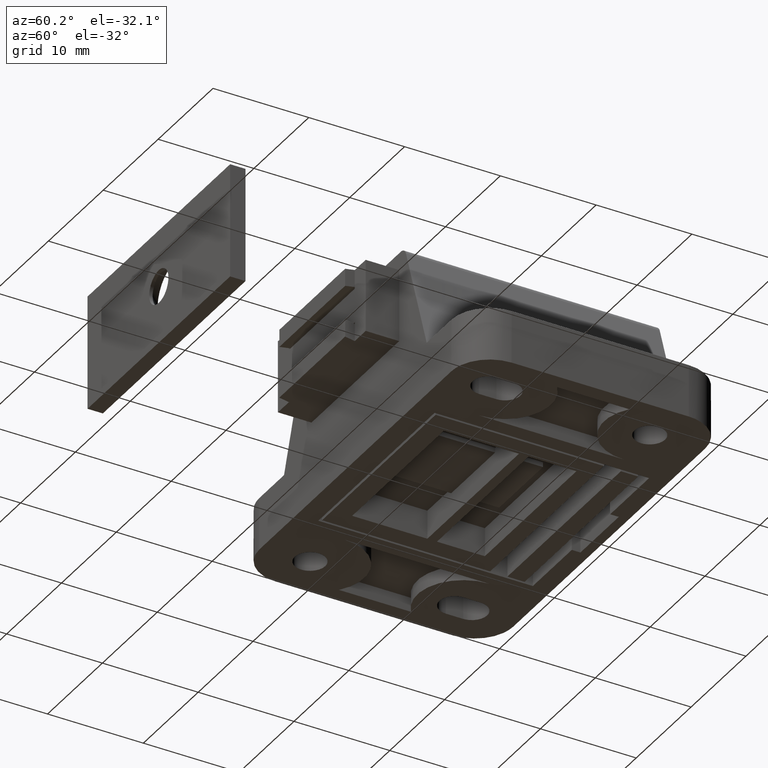
[diagram: clean part render]
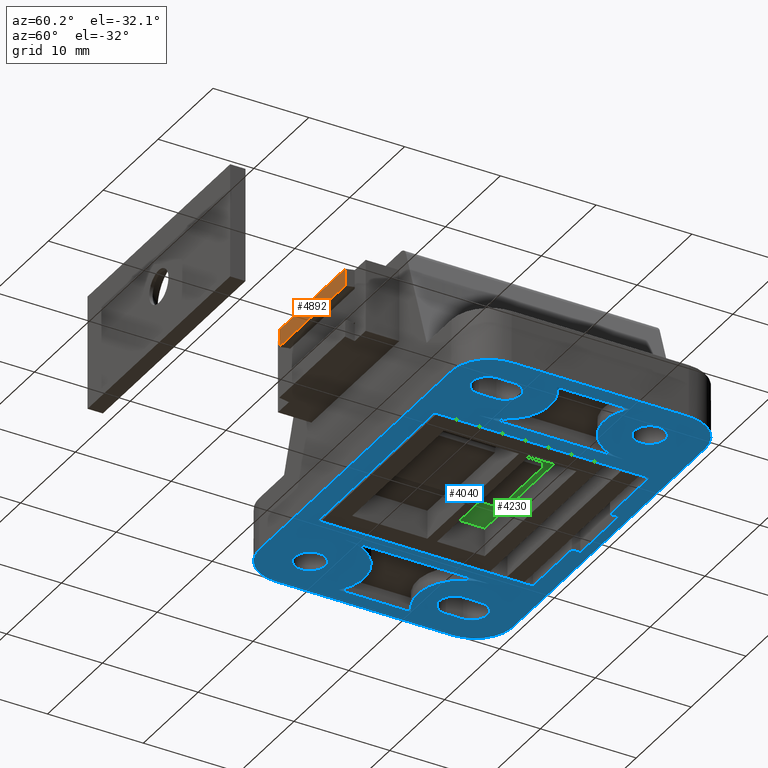
[diagram: same view with three faces highlighted in distinct colors, each labeled with its STEP entity id]
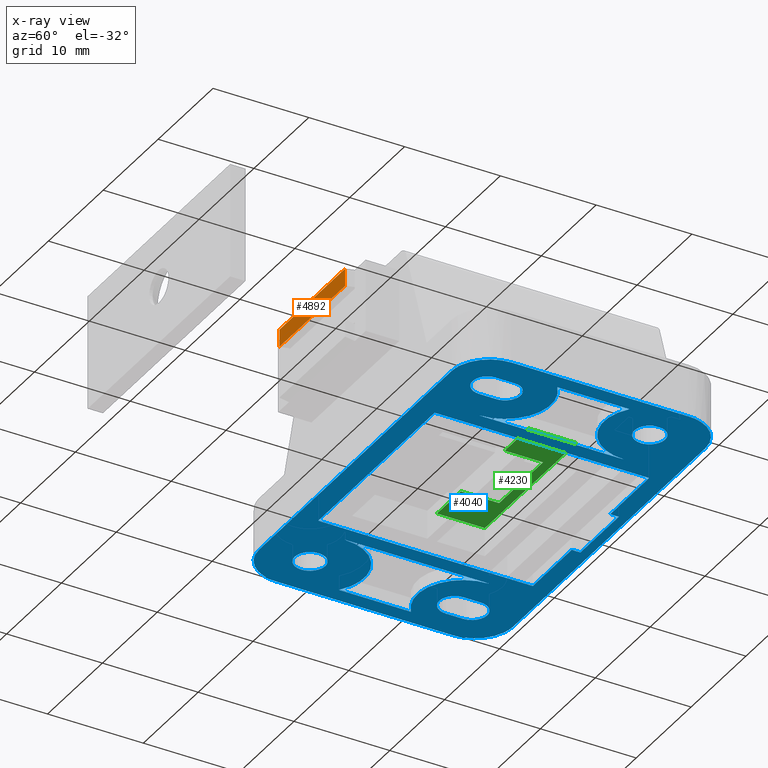
[diagram: x-ray of the same camera — body ghosted, the three highlighted faces saturated]
A machine part, auxiliary view with three faces highlighted in distinct colors.
The next image is the same camera in x-ray (body ghosted, the three faces saturated) — at least one of them is partly hidden behind the body in this view.
Their STEP definitions:

[orange] entity #4892 — the highlighted face is a freeform B-spline surface patch.
#4842=CARTESIAN_POINT('',(-6.0,-31.0,13.999982178704100));
#4843=VERTEX_POINT('',#4842);
#4850=CARTESIAN_POINT('',(6.0,-31.0,13.999982178704100));
#4851=VERTEX_POINT('',#4850);
#4857=CARTESIAN_POINT('',(6.0,-31.0,13.999982178704100));
#4858=CARTESIAN_POINT('',(-6.0,-31.0,13.999982178704100));
#4859=QUASI_UNIFORM_CURVE('',1,(#4857,#4858),.UNSPECIFIED.,.F.,.U.);
#4860=EDGE_CURVE('',#4851,#4843,#4859,.T.);
#4865=CARTESIAN_POINT('',(-6.599399976741673,-31.0,13.908889116487950));
#4866=CARTESIAN_POINT('',(-6.599399976741673,-31.0,15.914760289851399));
#4867=CARTESIAN_POINT('',(6.599400298606755,-31.0,13.908889116487950));
#4868=CARTESIAN_POINT('',(6.599400298606755,-31.0,15.914760289851399));
#4869=B_SPLINE_SURFACE_WITH_KNOTS('',1,1,((#4865,#4867),(#4866,#4868)),.UNSPECIFIED.,.F.,.F.,.U.,(2,2),(2,2),(0.0,2.005871173363449),(0.0,13.198800275348431),.UNSPECIFIED.);
#4870=CARTESIAN_POINT('',(-6.0,-31.0,15.823667178720200));
#4871=VERTEX_POINT('',#4870);
#4872=CARTESIAN_POINT('',(-6.0,-31.0,15.823667178720200));
#4873=CARTESIAN_POINT('',(-6.0,-31.0,13.999982178704100));
#4874=QUASI_UNIFORM_CURVE('',1,(#4872,#4873),.UNSPECIFIED.,.F.,.U.);
#4875=EDGE_CURVE('',#4871,#4843,#4874,.T.);
#4876=ORIENTED_EDGE('',*,*,#4875,.T.);
#4877=ORIENTED_EDGE('',*,*,#4860,.F.);
#4878=CARTESIAN_POINT('',(6.0,-31.0,15.823667178720200));
#4879=VERTEX_POINT('',#4878);
#4880=CARTESIAN_POINT('',(6.0,-31.0,15.823667178720200));
#4881=CARTESIAN_POINT('',(6.0,-31.0,13.999982178704100));
#4882=QUASI_UNIFORM_CURVE('',1,(#4880,#4881),.UNSPECIFIED.,.F.,.U.);
#4883=EDGE_CURVE('',#4879,#4851,#4882,.T.);
#4884=ORIENTED_EDGE('',*,*,#4883,.F.);
#4885=CARTESIAN_POINT('',(6.0,-31.0,15.823667178720200));
#4886=CARTESIAN_POINT('',(-6.0,-31.0,15.823667178720200));
#4887=QUASI_UNIFORM_CURVE('',1,(#4885,#4886),.UNSPECIFIED.,.F.,.U.);
#4888=EDGE_CURVE('',#4879,#4871,#4887,.T.);
#4889=ORIENTED_EDGE('',*,*,#4888,.T.);
#4890=EDGE_LOOP('',(#4876,#4877,#4884,#4889));
#4891=FACE_OUTER_BOUND('',#4890,.T.);
#4892=ADVANCED_FACE('',(#4891),#4869,.F.);

[blue] entity #4040 — the highlighted face is a freeform B-spline surface patch.
#1383=CARTESIAN_POINT('',(15.919059576382010,-4.320356108366761,8.326673E-017));
#1384=VERTEX_POINT('',#1383);
#1390=CARTESIAN_POINT('',(17.000003299812128,-3.900000000000264,0.0));
#1391=VERTEX_POINT('',#1390);
#1392=CARTESIAN_POINT('',(17.000003299812128,-3.900000000000264,0.0));
#1393=CARTESIAN_POINT('',(16.839278033147750,-3.899923436965544,1.238091E-017));
#1394=CARTESIAN_POINT('',(16.616794961024649,-3.933817106661194,2.951911E-017));
#1395=CARTESIAN_POINT('',(16.245816619025572,-4.073159576755494,5.809613E-017));
#1396=CARTESIAN_POINT('',(16.046604441163950,-4.203331620708187,7.344175E-017));
#1397=CARTESIAN_POINT('',(15.919059576382010,-4.320356108366761,8.326673E-017));
#1398=B_SPLINE_CURVE_WITH_KNOTS('',3,(#1392,#1393,#1394,#1395,#1396,#1397),.UNSPECIFIED.,.F.,.U.,(4,1,1,4),(0.000029902637246,0.482172894701399,0.667613995927958,1.186844805128582),.UNSPECIFIED.);
#1399=EDGE_CURVE('',#1391,#1384,#1398,.T.);
#1401=CARTESIAN_POINT('',(18.600003999999998,-5.500000000000110,0.0));
#1402=VERTEX_POINT('',#1401);
#1403=CARTESIAN_POINT('',(18.600003999999998,-5.500000000000110,0.0));
#1404=CARTESIAN_POINT('',(18.600043918464841,-5.362552990699267,0.0));
#1405=CARTESIAN_POINT('',(18.570290413108900,-5.133503226270417,0.0));
#1406=CARTESIAN_POINT('',(18.441969106481292,-4.774730882041303,0.0));
#1407=CARTESIAN_POINT('',(18.242009954981480,-4.463214071742804,0.0));
#1408=CARTESIAN_POINT('',(17.950662860433219,-4.195919740484785,0.0));
#1409=CARTESIAN_POINT('',(17.646997900039811,-4.023899129124258,0.0));
#1410=CARTESIAN_POINT('',(17.327243611777870,-3.922619395175811,0.0));
#1411=CARTESIAN_POINT('',(17.111266119982560,-3.899985257321630,0.0));
#1412=CARTESIAN_POINT('',(17.000003299812128,-3.900000000000264,0.0));
#1413=B_SPLINE_CURVE_WITH_KNOTS('',3,(#1403,#1404,#1405,#1406,#1407,#1408,#1409,#1410,#1411,#1412),.UNSPECIFIED.,.F.,.U.,(4,1,1,1,1,1,1,4),(0.000000059796598,0.412332460007275,0.687228764142328,1.138849418433117,1.511893794400894,1.865332492258203,2.179502804075492,2.513290287245679),.UNSPECIFIED.);
#1414=EDGE_CURVE('',#1402,#1391,#1413,.T.);
#1416=CARTESIAN_POINT('',(18.080948423617990,-6.679643891633461,-1.249001E-016));
#1417=VERTEX_POINT('',#1416);
#1418=CARTESIAN_POINT('',(18.080948423617990,-6.679643891633461,-1.249001E-016));
#1419=CARTESIAN_POINT('',(18.177731986192700,-6.590975435305674,-1.155119E-016));
#1420=CARTESIAN_POINT('',(18.371974345561348,-6.363205453618451,-9.139575E-017));
#1421=CARTESIAN_POINT('',(18.557473575112510,-5.955967587715835,-4.827761E-017));
#1422=CARTESIAN_POINT('',(18.600039863604000,-5.645081027245093,-1.536110E-017));
#1423=CARTESIAN_POINT('',(18.600003999999998,-5.500000000000110,0.0));
#1424=B_SPLINE_CURVE_WITH_KNOTS('',3,(#1418,#1419,#1420,#1421,#1422,#1423),.UNSPECIFIED.,.F.,.U.,(4,1,1,4),(0.000000018814707,0.393794391122592,0.891213019356780,1.326459612874815),.UNSPECIFIED.);
#1425=EDGE_CURVE('',#1417,#1402,#1424,.T.);
#1459=CARTESIAN_POINT('',(17.000004700187880,-7.099999999999956,0.0));
#1460=VERTEX_POINT('',#1459);
#1461=CARTESIAN_POINT('',(17.000004700187880,-7.099999999999956,0.0));
#1462=CARTESIAN_POINT('',(17.111268472385731,-7.100014348539089,-1.285622E-017));
#1463=CARTESIAN_POINT('',(17.346159885214149,-7.075407456273957,-3.999728E-017));
#1464=CARTESIAN_POINT('',(17.723649010535070,-6.948445782808120,-8.361511E-017));
#1465=CARTESIAN_POINT('',(17.962500935797511,-6.788276912701074,-1.112138E-016));
#1466=CARTESIAN_POINT('',(18.080948423617990,-6.679643891633461,-1.249001E-016));
#1467=B_SPLINE_CURVE_WITH_KNOTS('',3,(#1461,#1462,#1463,#1464,#1465,#1466),.UNSPECIFIED.,.F.,.U.,(4,1,1,4),(0.000029902637423,0.333821452377519,0.704701813049905,1.186844805128569),.UNSPECIFIED.);
#1468=EDGE_CURVE('',#1460,#1417,#1467,.T.);
#1470=CARTESIAN_POINT('',(15.400003999999999,-5.500000000000110,0.0));
#1471=VERTEX_POINT('',#1470);
#1472=CARTESIAN_POINT('',(15.400003999999999,-5.500000000000110,0.0));
#1473=CARTESIAN_POINT('',(15.399982870362271,-5.624354466942160,0.0));
#1474=CARTESIAN_POINT('',(15.429141513583570,-5.873052815241662,0.0));
#1475=CARTESIAN_POINT('',(15.571340501872960,-6.263106614950690,0.0));
#1476=CARTESIAN_POINT('',(15.809806374713840,-6.597323852597921,0.0));
#1477=CARTESIAN_POINT('',(16.120368826417810,-6.852106536443438,0.0));
#1478=CARTESIAN_POINT('',(16.502677646426658,-7.044578682780013,0.0));
#1479=CARTESIAN_POINT('',(16.810174647185139,-7.100161435045648,0.0));
#1480=CARTESIAN_POINT('',(17.000004700187880,-7.099999999999956,0.0));
#1481=B_SPLINE_CURVE_WITH_KNOTS('',3,(#1472,#1473,#1474,#1475,#1476,#1477,#1478,#1479,#1480),.UNSPECIFIED.,.F.,.U.,(4,1,1,1,1,1,4),(0.000000059793927,0.373062237881314,0.746137085545919,1.237027849721945,1.590432666047061,1.943873932416668,2.513290287245692),.UNSPECIFIED.);
#1482=EDGE_CURVE('',#1471,#1460,#1481,.T.);
#1484=CARTESIAN_POINT('',(15.919059576382010,-4.320356108366761,8.326673E-017));
#1485=CARTESIAN_POINT('',(15.791634415247390,-4.436972101833264,7.503523E-017));
#1486=CARTESIAN_POINT('',(15.627225180011139,-4.646022937721922,6.027910E-017));
#1487=CARTESIAN_POINT('',(15.445891604933159,-5.051015080520730,3.169220E-017));
#1488=CARTESIAN_POINT('',(15.399866730492761,-5.320351141157878,1.268075E-017));
#1489=CARTESIAN_POINT('',(15.400003999999999,-5.500000000000110,0.0));
#1490=B_SPLINE_CURVE_WITH_KNOTS('',3,(#1484,#1485,#1486,#1487,#1488,#1489),.UNSPECIFIED.,.F.,.U.,(4,1,1,4),(0.000000018813523,0.518149565954184,0.787578948524305,1.326459612874832),.UNSPECIFIED.);
#1491=EDGE_CURVE('',#1384,#1471,#1490,.T.);
#1516=CARTESIAN_POINT('',(-18.080944423617989,-20.320356108366649,8.326673E-017));
#1517=VERTEX_POINT('',#1516);
#1523=CARTESIAN_POINT('',(-17.000000700187869,-19.900000000000151,0.0));
#1524=VERTEX_POINT('',#1523);
#1525=CARTESIAN_POINT('',(-17.000000700187869,-19.900000000000151,0.0));
#1526=CARTESIAN_POINT('',(-17.160725044255440,-19.899923049500799,1.238084E-017));
#1527=CARTESIAN_POINT('',(-17.383210828633469,-19.933817927395680,2.951925E-017));
#1528=CARTESIAN_POINT('',(-17.754185616950760,-20.073158901945320,5.809600E-017));
#1529=CARTESIAN_POINT('',(-17.953400455220290,-20.203332009916220,7.344182E-017));
#1530=CARTESIAN_POINT('',(-18.080944423617989,-20.320356108366649,8.326673E-017));
#1531=B_SPLINE_CURVE_WITH_KNOTS('',3,(#1525,#1526,#1527,#1528,#1529,#1530),.UNSPECIFIED.,.F.,.U.,(4,1,1,4),(0.000029902635757,0.482172894700609,0.667613995927347,1.186844805128582),.UNSPECIFIED.);
#1532=EDGE_CURVE('',#1524,#1517,#1531,.T.);
#1534=CARTESIAN_POINT('',(-15.400000000000000,-21.500000000000000,0.0));
#1535=VERTEX_POINT('',#1534);
#1536=CARTESIAN_POINT('',(-15.400000000000000,-21.500000000000000,0.0));
#1537=CARTESIAN_POINT('',(-15.399991968787530,-21.401825734448611,0.0));
#1538=CARTESIAN_POINT('',(-15.419338127092180,-21.192392360006291,0.0));
#1539=CARTESIAN_POINT('',(-15.525942371364490,-20.832742820343469,0.0));
#1540=CARTESIAN_POINT('',(-15.739182311094471,-20.481894492678350,0.0));
#1541=CARTESIAN_POINT('',(-16.043604425217499,-20.199158182016571,0.0));
#1542=CARTESIAN_POINT('',(-16.324359530756499,-20.040139833957539,0.0));
#1543=CARTESIAN_POINT('',(-16.640053427315340,-19.929366700325019,0.0));
#1544=CARTESIAN_POINT('',(-16.856004108531490,-19.899948890867361,0.0));
#1545=CARTESIAN_POINT('',(-17.000000700187869,-19.900000000000151,0.0));
#1546=B_SPLINE_CURVE_WITH_KNOTS('',3,(#1536,#1537,#1538,#1539,#1540,#1541,#1542,#1543,#1544,#1545),.UNSPECIFIED.,.F.,.U.,(4,1,1,1,1,1,1,4),(0.000000059801591,0.294524324204230,0.628323121827682,1.119202642757225,1.511893794401964,1.865332492259115,2.081320686443302,2.513290287245651),.UNSPECIFIED.);
#1547=EDGE_CURVE('',#1535,#1524,#1546,.T.);
#1549=CARTESIAN_POINT('',(-15.919055576382011,-22.679643891633351,8.326673E-017));
#1550=VERTEX_POINT('',#1549);
#1551=CARTESIAN_POINT('',(-15.919055576382011,-22.679643891633351,8.326673E-017));
#1552=CARTESIAN_POINT('',(-15.812052686179960,-22.581660621653160,7.635045E-017));
#1553=CARTESIAN_POINT('',(-15.665122343893060,-22.404597886024710,6.385224E-017));
#1554=CARTESIAN_POINT('',(-15.518139651968200,-22.121747864170331,4.388690E-017));
#1555=CARTESIAN_POINT('',(-15.425101659090981,-21.838513414604911,2.389442E-017));
#1556=CARTESIAN_POINT('',(-15.399971607397740,-21.624357734017920,8.777955E-018));
#1557=CARTESIAN_POINT('',(-15.400000000000000,-21.500000000000000,0.0));
#1558=B_SPLINE_CURVE_WITH_KNOTS('',3,(#1551,#1552,#1553,#1554,#1555,#1556,#1557),.UNSPECIFIED.,.F.,.U.,(4,1,1,1,4),(0.000000018812638,0.435246612348211,0.683945652423920,0.953392124298708,1.326459612874826),.UNSPECIFIED.);
#1559=EDGE_CURVE('',#1550,#1535,#1558,.T.);
#1593=CARTESIAN_POINT('',(-16.999999299812121,-23.099999999999849,0.0));
#1594=VERTEX_POINT('',#1593);
#1595=CARTESIAN_POINT('',(-16.999999299812121,-23.099999999999849,0.0));
#1596=CARTESIAN_POINT('',(-16.864007519871681,-23.100037802254441,1.047565E-017));
#1597=CARTESIAN_POINT('',(-16.641496316695740,-23.071446696546019,2.761602E-017));
#1598=CARTESIAN_POINT('',(-16.266785693776260,-22.940550727929139,5.648055E-017));
#1599=CARTESIAN_POINT('',(-16.046598606585640,-22.796666055902271,7.344189E-017));
#1600=CARTESIAN_POINT('',(-15.919055576382011,-22.679643891633351,8.326673E-017));
#1601=B_SPLINE_CURVE_WITH_KNOTS('',3,(#1595,#1596,#1597,#1598,#1599,#1600),.UNSPECIFIED.,.F.,.U.,(4,1,1,4),(0.000029902636299,0.407997168622959,0.667613995927721,1.186844805128566),.UNSPECIFIED.);
#1602=EDGE_CURVE('',#1594,#1550,#1601,.T.);
#1604=CARTESIAN_POINT('',(-18.600000000000001,-21.500000000000000,0.0));
#1605=VERTEX_POINT('',#1604);
#1606=CARTESIAN_POINT('',(-18.600000000000001,-21.500000000000000,0.0));
#1607=CARTESIAN_POINT('',(-18.600021991081618,-21.624354071965069,0.0));
#1608=CARTESIAN_POINT('',(-18.573162925726479,-21.853420867767390,0.0));
#1609=CARTESIAN_POINT('',(-18.474738160925838,-22.139483543843149,0.0));
#1610=CARTESIAN_POINT('',(-18.330870226989049,-22.404736002520728,0.0));
#1611=CARTESIAN_POINT('',(-18.119292771574099,-22.665840177710859,0.0));
#1612=CARTESIAN_POINT('',(-17.839631651180561,-22.875907819697471,0.0));
#1613=CARTESIAN_POINT('',(-17.464599172335809,-23.050487525952470,0.0));
#1614=CARTESIAN_POINT('',(-17.189831944607018,-23.100149345721821,0.0));
#1615=CARTESIAN_POINT('',(-16.999999299812121,-23.099999999999849,0.0));
#1616=B_SPLINE_CURVE_WITH_KNOTS('',3,(#1606,#1607,#1608,#1609,#1610,#1611,#1612,#1613,#1614,#1615),.UNSPECIFIED.,.F.,.U.,(4,1,1,1,1,1,1,4),(0.000000059790709,0.373062237878924,0.687228764138522,0.903215895794845,1.276261969619775,1.688614783701221,1.943873932416338,2.513290287245694),.UNSPECIFIED.);
#1617=EDGE_CURVE('',#1605,#1594,#1616,.T.);
#1619=CARTESIAN_POINT('',(-18.080944423617989,-20.320356108366649,8.326673E-017));
#1620=CARTESIAN_POINT('',(-18.172646136686009,-20.404352411328720,7.733774E-017));
#1621=CARTESIAN_POINT('',(-18.336304584375931,-20.593868060611150,6.396052E-017));
#1622=CARTESIAN_POINT('',(-18.541622006064859,-20.988862996044020,3.607928E-017));
#1623=CARTESIAN_POINT('',(-18.600174206566269,-21.306530050609570,1.365633E-017));
#1624=CARTESIAN_POINT('',(-18.600000000000001,-21.500000000000000,0.0));
#1625=B_SPLINE_CURVE_WITH_KNOTS('',3,(#1619,#1620,#1621,#1622,#1623,#1624),.UNSPECIFIED.,.F.,.U.,(4,1,1,4),(0.000000018813927,0.373067507395356,0.746127337586802,1.326459612874841),.UNSPECIFIED.);
#1626=EDGE_CURVE('',#1517,#1605,#1625,.T.);
#1664=CARTESIAN_POINT('',(17.500004000000001,-26.500000000000000,0.0));
#1665=VERTEX_POINT('',#1664);
#1671=CARTESIAN_POINT('',(21.500004000000001,-22.500000000000000,0.0));
#1672=VERTEX_POINT('',#1671);
#1673=CARTESIAN_POINT('',(21.500004000000001,-22.500000000000000,0.0));
#1674=CARTESIAN_POINT('',(21.500088939378038,-22.827256214470310,0.0));
#1675=CARTESIAN_POINT('',(21.431328082190880,-23.383535719117639,0.0));
#1676=CARTESIAN_POINT('',(21.148196805316740,-24.206628916428532,0.0));
#1677=CARTESIAN_POINT('',(20.737483739106619,-24.901549265306350,0.0));
#1678=CARTESIAN_POINT('',(20.245067946775830,-25.431524844746608,0.0));
#1679=CARTESIAN_POINT('',(19.743651181604619,-25.827808094386729,0.0));
#1680=CARTESIAN_POINT('',(19.247035441880900,-26.117239364629029,0.0));
#1681=CARTESIAN_POINT('',(18.481663421859029,-26.412532940329090,0.0));
#1682=CARTESIAN_POINT('',(17.892726749522659,-26.500174128748270,0.0));
#1683=CARTESIAN_POINT('',(17.500004000000001,-26.500000000000000,0.0));
#1684=B_SPLINE_CURVE_WITH_KNOTS('',3,(#1673,#1674,#1675,#1676,#1677,#1678,#1679,#1680,#1681,#1682,#1683),.UNSPECIFIED.,.F.,.U.,(4,1,1,1,1,1,1,1,4),(0.000000032443184,0.981750947288642,1.668982886460930,2.601661185809858,3.387036298014846,3.828837537311095,4.516065299020196,5.105124809596146,6.283224731501205),.UNSPECIFIED.);
#1685=EDGE_CURVE('',#1672,#1665,#1684,.T.);
#1727=CARTESIAN_POINT('',(21.500004000000001,-4.0,0.0));
#1728=VERTEX_POINT('',#1727);
#1734=CARTESIAN_POINT('',(17.500004000000001,0.0,0.0));
#1735=VERTEX_POINT('',#1734);
#1736=CARTESIAN_POINT('',(17.500004000000001,0.0,0.0));
#1737=CARTESIAN_POINT('',(17.892726355740631,0.000188681128478,0.0));
#1738=CARTESIAN_POINT('',(18.547107890110560,-0.097212903303109,0.0));
#1739=CARTESIAN_POINT('',(19.412947330010109,-0.455851711074045,0.0));
#1740=CARTESIAN_POINT('',(20.025956785448251,-0.870933345578662,0.0));
#1741=CARTESIAN_POINT('',(20.472161855459230,-1.306369766064500,0.0));
#1742=CARTESIAN_POINT('',(20.827812215164599,-1.756351975131964,0.0));
#1743=CARTESIAN_POINT('',(21.117244254583930,-2.252967800955791,0.0));
#1744=CARTESIAN_POINT('',(21.412536481564750,-3.018340980859986,0.0));
#1745=CARTESIAN_POINT('',(21.500178266938931,-3.607277113232672,0.0));
#1746=CARTESIAN_POINT('',(21.500004000000001,-4.0,0.0));
#1747=B_SPLINE_CURVE_WITH_KNOTS('',3,(#1736,#1737,#1738,#1739,#1740,#1741,#1742,#1743,#1744,#1745,#1746),.UNSPECIFIED.,.F.,.U.,(4,1,1,1,1,1,1,1,4),(0.000000032447061,1.178100774596782,1.963512797422508,2.798000322504592,3.387036298014542,3.828837537310797,4.516065299020096,5.105124809596042,6.283224731501202),.UNSPECIFIED.);
#1748=EDGE_CURVE('',#1735,#1728,#1747,.T.);
#1790=CARTESIAN_POINT('',(-17.500000000000000,0.0,0.0));
#1791=VERTEX_POINT('',#1790);
#1797=CARTESIAN_POINT('',(-21.500000000000000,-4.0,0.0));
#1798=VERTEX_POINT('',#1797);
#1799=CARTESIAN_POINT('',(-21.500000000000000,-4.0,0.0));
#1800=CARTESIAN_POINT('',(-21.500188455549679,-3.607277669973712,0.0));
#1801=CARTESIAN_POINT('',(-21.402787323192381,-2.952896122975232,0.0));
#1802=CARTESIAN_POINT('',(-21.044148157068872,-2.087056651635735,0.0));
#1803=CARTESIAN_POINT('',(-20.629066697438802,-1.474047163467966,0.0));
#1804=CARTESIAN_POINT('',(-20.193630224374289,-1.027842200243739,0.0));
#1805=CARTESIAN_POINT('',(-19.743648066003210,-0.672191756558146,0.0));
#1806=CARTESIAN_POINT('',(-19.247032181529089,-0.382759752470279,0.0));
#1807=CARTESIAN_POINT('',(-18.481659051165529,-0.087467500792998,0.0));
#1808=CARTESIAN_POINT('',(-17.892722843233180,0.000174305706280,0.0));
#1809=CARTESIAN_POINT('',(-17.500000000000000,0.0,0.0));
#1810=B_SPLINE_CURVE_WITH_KNOTS('',3,(#1799,#1800,#1801,#1802,#1803,#1804,#1805,#1806,#1807,#1808,#1809),.UNSPECIFIED.,.F.,.U.,(4,1,1,1,1,1,1,1,4),(0.000000032443401,1.178100774594877,1.963512797421194,2.798000322503930,3.387036298014064,3.828837537310431,4.516065299019843,5.105124809595866,6.283224731501208),.UNSPECIFIED.);
#1811=EDGE_CURVE('',#1798,#1791,#1810,.T.);
#1853=CARTESIAN_POINT('',(-21.500000000000000,-22.500000000000000,0.0));
#1854=VERTEX_POINT('',#1853);
#1860=CARTESIAN_POINT('',(-17.500000000000000,-26.500000000000000,0.0));
#1861=VERTEX_POINT('',#1860);
#1862=CARTESIAN_POINT('',(-17.500000000000000,-26.500000000000000,0.0));
#1863=CARTESIAN_POINT('',(-17.876354597767559,-26.500140633373132,0.0));
#1864=CARTESIAN_POINT('',(-18.465306141223721,-26.416224679292831,0.0));
#1865=CARTESIAN_POINT('',(-19.278912177642820,-26.108091624416812,0.0));
#1866=CARTESIAN_POINT('',(-19.841258898002721,-25.766321035291000,0.0));
#1867=CARTESIAN_POINT('',(-20.362607989781420,-25.316584361400349,0.0));
#1868=CARTESIAN_POINT('',(-20.810187833995439,-24.791269523858109,0.0));
#1869=CARTESIAN_POINT('',(-21.187184393979749,-24.116171927291798,0.0));
#1870=CARTESIAN_POINT('',(-21.440084189095181,-23.334460384174569,0.0));
#1871=CARTESIAN_POINT('',(-21.500054426259592,-22.794526944505101,0.0));
#1872=CARTESIAN_POINT('',(-21.500000000000000,-22.500000000000000,0.0));
#1873=B_SPLINE_CURVE_WITH_KNOTS('',3,(#1862,#1863,#1864,#1865,#1866,#1867,#1868,#1869,#1870,#1871,#1872),.UNSPECIFIED.,.F.,.U.,(4,1,1,1,1,1,1,1,4),(0.000000032449065,1.129011238836777,1.767159290552413,2.601661185811866,3.092533720797839,3.828837537312082,4.663330579752194,5.399654192734517,6.283224731501206),.UNSPECIFIED.);
#1874=EDGE_CURVE('',#1861,#1854,#1873,.T.);
#2065=CARTESIAN_POINT('',(12.225004000000000,-5.500003583302650,0.0));
#2066=VERTEX_POINT('',#2065);
#2067=CARTESIAN_POINT('',(12.225002999999999,-20.600002000000000,0.0));
#2068=VERTEX_POINT('',#2067);
#2069=CARTESIAN_POINT('',(12.225004000000000,-5.500003583302650,0.0));
#2070=CARTESIAN_POINT('',(12.225002999999999,-20.600002000000000,0.0));
#2071=QUASI_UNIFORM_CURVE('',1,(#2069,#2070),.UNSPECIFIED.,.F.,.U.);
#2072=EDGE_CURVE('',#2066,#2068,#2071,.T.);
#2102=CARTESIAN_POINT('',(19.899998000000000,-9.293499000000001,0.0));
#2103=VERTEX_POINT('',#2102);
#2104=CARTESIAN_POINT('',(19.899998000000000,-9.293499000000001,0.0));
#2105=CARTESIAN_POINT('',(19.658399035453488,-9.478232256033941,0.0));
#2106=CARTESIAN_POINT('',(19.127953662757729,-9.808660279340007,0.0));
#2107=CARTESIAN_POINT('',(18.296317615942240,-10.123343791976490,0.0));
#2108=CARTESIAN_POINT('',(17.491001986934052,-10.269306397941181,0.0));
#2109=CARTESIAN_POINT('',(16.687205029364609,-10.287799849827570,0.0));
#2110=CARTESIAN_POINT('',(15.849109450779871,-10.164271248126781,0.0));
#2111=CARTESIAN_POINT('',(14.918685644786940,-9.837829378704186,0.0));
#2112=CARTESIAN_POINT('',(14.135590936468960,-9.357469530565293,0.0));
#2113=CARTESIAN_POINT('',(13.532411267079770,-8.805111017429466,0.0));
#2114=CARTESIAN_POINT('',(13.108863362989670,-8.292463503338285,0.0));
#2115=CARTESIAN_POINT('',(12.713949879679349,-7.656814884491470,0.0));
#2116=CARTESIAN_POINT('',(12.336832146991821,-6.730285031350383,0.0));
#2117=CARTESIAN_POINT('',(12.224817155974430,-5.956225363166073,0.0));
#2118=CARTESIAN_POINT('',(12.225004000000000,-5.500003583302650,0.0));
#2119=B_SPLINE_CURVE_WITH_KNOTS('',3,(#2104,#2105,#2106,#2107,#2108,#2109,#2110,#2111,#2112,#2113,#2114,#2115,#2116,#2117,#2118),.UNSPECIFIED.,.F.,.U.,(4,1,1,1,1,1,1,1,1,1,1,1,4),(0.000000070484065,0.912396483761263,1.866296012429412,2.654300147252872,3.359355780338222,4.271768131317158,5.184187212224217,6.303951823160832,7.009002464510613,7.631111460082215,8.294690755442812,9.248589866356614,10.617198789067579),.UNSPECIFIED.);
#2120=EDGE_CURVE('',#2103,#2066,#2119,.T.);
#2137=CARTESIAN_POINT('',(19.899998000000000,-16.806507000000000,0.0));
#2138=VERTEX_POINT('',#2137);
#2139=CARTESIAN_POINT('',(19.899998000000000,-16.806507000000000,0.0));
#2140=CARTESIAN_POINT('',(19.899998000000000,-9.293499000000001,0.0));
#2141=QUASI_UNIFORM_CURVE('',1,(#2139,#2140),.UNSPECIFIED.,.F.,.U.);
#2142=EDGE_CURVE('',#2138,#2103,#2141,.T.);
#2168=CARTESIAN_POINT('',(12.225002999999999,-20.600002000000000,0.0));
#2169=CARTESIAN_POINT('',(12.224826235365869,-20.157596578221540,0.0));
#2170=CARTESIAN_POINT('',(12.314034197561680,-19.521773458000229,0.0));
#2171=CARTESIAN_POINT('',(12.608624853095980,-18.685745517903548,0.0));
#2172=CARTESIAN_POINT('',(12.914619569050981,-18.094654068139821,0.0));
#2173=CARTESIAN_POINT('',(13.377001983499010,-17.454220031719011,0.0));
#2174=CARTESIAN_POINT('',(13.922343710643281,-16.918950272959130,0.0));
#2175=CARTESIAN_POINT('',(14.571290707503090,-16.468607041983692,0.0));
#2176=CARTESIAN_POINT('',(15.279851755316530,-16.118363763302860,0.0));
#2177=CARTESIAN_POINT('',(16.174188925165161,-15.860161556741961,0.0));
#2178=CARTESIAN_POINT('',(17.118069135383600,-15.795701998252611,0.0));
#2179=CARTESIAN_POINT('',(17.902360633695569,-15.896093159748480,0.0));
#2180=CARTESIAN_POINT('',(18.597687101025048,-16.082421695357429,0.0));
#2181=CARTESIAN_POINT('',(19.248342044947769,-16.361482654946322,0.0));
#2182=CARTESIAN_POINT('',(19.702320186350640,-16.655373821266991,0.0));
#2183=CARTESIAN_POINT('',(19.899998000000000,-16.806507000000000,0.0));
#2184=B_SPLINE_CURVE_WITH_KNOTS('',3,(#2168,#2169,#2170,#2171,#2172,#2173,#2174,#2175,#2176,#2177,#2178,#2179,#2180,#2181,#2182,#2183),.UNSPECIFIED.,.F.,.U.,(4,1,1,1,1,1,1,1,1,1,1,1,1,4),(0.000000070528396,1.327148533229545,1.907775417147372,2.654300227156119,3.317876161176797,4.271768259888625,4.935354324788950,5.681848220493019,6.635735344517604,7.714056701642858,8.502059284316506,8.999746768588443,9.870697005994689,10.617199108555599),.UNSPECIFIED.);
#2185=EDGE_CURVE('',#2068,#2138,#2184,.T.);
#2272=CARTESIAN_POINT('',(-12.224997999999999,-5.500004000000001,0.0));
#2273=VERTEX_POINT('',#2272);
#2274=CARTESIAN_POINT('',(-19.900000355247201,-9.293501454798971,0.0));
#2275=VERTEX_POINT('',#2274);
#2276=CARTESIAN_POINT('',(-12.224997999999999,-5.500004000000001,0.0));
#2277=CARTESIAN_POINT('',(-12.224958897156171,-5.804138623114898,0.0));
#2278=CARTESIAN_POINT('',(-12.274044198678549,-6.315623764218908,0.0));
#2279=CARTESIAN_POINT('',(-12.467141109221370,-7.052711106752489,0.0));
#2280=CARTESIAN_POINT('',(-12.742225374444731,-7.704230526974625,0.0));
#2281=CARTESIAN_POINT('',(-13.100789725768751,-8.281393827438507,0.0));
#2282=CARTESIAN_POINT('',(-13.532931054501359,-8.804456926452504,0.0));
#2283=CARTESIAN_POINT('',(-14.062636282290500,-9.293700160822107,0.0));
#2284=CARTESIAN_POINT('',(-14.691188853946850,-9.702178087534847,0.0));
#2285=CARTESIAN_POINT('',(-15.437531472193021,-10.035455611899810,0.0));
#2286=CARTESIAN_POINT('',(-16.150072334907140,-10.221159725863361,0.0));
#2287=CARTESIAN_POINT('',(-16.936565335366019,-10.292043989676101,0.0));
#2288=CARTESIAN_POINT('',(-17.712089376879661,-10.247247521651900,0.0));
#2289=CARTESIAN_POINT('',(-18.427761382802760,-10.075283281262459,0.0));
#2290=CARTESIAN_POINT('',(-19.185209314082101,-9.769722158473035,0.0));
#2291=CARTESIAN_POINT('',(-19.625460872287562,-9.503446897225560,0.0));
#2292=CARTESIAN_POINT('',(-19.900000355247201,-9.293501454798971,0.0));
#2293=B_SPLINE_CURVE_WITH_KNOTS('',3,(#2276,#2277,#2278,#2279,#2280,#2281,#2282,#2283,#2284,#2285,#2286,#2287,#2288,#2289,#2290,#2291,#2292),.UNSPECIFIED.,.F.,.U.,(4,1,1,1,1,1,1,1,1,1,1,1,1,1,4),(0.000000070468978,0.912397230338531,1.534509343650695,2.281039616720733,3.027567967737261,3.566722180670279,4.313255871332181,5.184191454201149,5.806272102931660,6.760162878323369,7.382274614060854,8.170275744500566,9.082694157789964,9.580378950447265,10.617207476662690),.UNSPECIFIED.);
#2294=EDGE_CURVE('',#2273,#2275,#2293,.T.);
#2315=CARTESIAN_POINT('',(-12.225000000000000,-20.600002000000000,0.0));
#2316=VERTEX_POINT('',#2315);
#2317=CARTESIAN_POINT('',(-12.225000000000000,-20.600002000000000,0.0));
#2318=CARTESIAN_POINT('',(-12.224997999999999,-5.500004000000001,0.0));
#2319=QUASI_UNIFORM_CURVE('',1,(#2317,#2318),.UNSPECIFIED.,.F.,.U.);
#2320=EDGE_CURVE('',#2316,#2273,#2319,.T.);
#2346=CARTESIAN_POINT('',(-19.900000355247201,-16.806504545201051,0.0));
#2347=VERTEX_POINT('',#2346);
#2348=CARTESIAN_POINT('',(-19.900000355247201,-16.806504545201051,0.0));
#2349=CARTESIAN_POINT('',(-19.559613766150690,-16.546099048988818,0.0));
#2350=CARTESIAN_POINT('',(-18.977779001916339,-16.214733316760640,0.0));
#2351=CARTESIAN_POINT('',(-18.185575042253920,-15.961356045909159,0.0));
#2352=CARTESIAN_POINT('',(-17.545883255137671,-15.842511142520589,0.0));
#2353=CARTESIAN_POINT('',(-16.867380677678401,-15.806237248231820,0.0));
#2354=CARTESIAN_POINT('',(-16.012273913858930,-15.898298560461980,0.0));
#2355=CARTESIAN_POINT('',(-15.121728451063930,-16.172157920577149,0.0));
#2356=CARTESIAN_POINT('',(-14.320055300046620,-16.617298304854501,0.0));
#2357=CARTESIAN_POINT('',(-13.686413692855840,-17.134840793775080,0.0));
#2358=CARTESIAN_POINT('',(-13.251997721161000,-17.620689087311579,0.0));
#2359=CARTESIAN_POINT('',(-12.882746200721551,-18.156226008161099,0.0));
#2360=CARTESIAN_POINT('',(-12.583105961824840,-18.734999353542250,0.0));
#2361=CARTESIAN_POINT('',(-12.302777418756859,-19.577037754937422,0.0));
#2362=CARTESIAN_POINT('',(-12.224898554446590,-20.212909642257269,0.0));
#2363=CARTESIAN_POINT('',(-12.225000000000000,-20.600002000000000,0.0));
#2364=B_SPLINE_CURVE_WITH_KNOTS('',3,(#2348,#2349,#2350,#2351,#2352,#2353,#2354,#2355,#2356,#2357,#2358,#2359,#2360,#2361,#2362,#2363),.UNSPECIFIED.,.F.,.U.,(4,1,1,1,1,1,1,1,1,1,1,1,1,4),(0.000000070524811,1.285664535193288,1.990719372278013,2.488407366299551,3.234935791537359,4.022931911409315,5.059775164956520,6.013631165034941,6.760161974009695,7.506695295978402,7.962905089045093,8.709427861524432,9.455956992765090,10.617206056368870),.UNSPECIFIED.);
#2365=EDGE_CURVE('',#2347,#2316,#2364,.T.);
#2382=CARTESIAN_POINT('',(-19.900000355247201,-9.293501454798971,0.0));
#2383=CARTESIAN_POINT('',(-19.900000355247201,-16.806504545201051,0.0));
#2384=QUASI_UNIFORM_CURVE('',1,(#2382,#2383),.UNSPECIFIED.,.F.,.U.);
#2385=EDGE_CURVE('',#2275,#2347,#2384,.T.);
#2462=CARTESIAN_POINT('',(-10.599997999999999,-24.299999000000000,0.0));
#2463=VERTEX_POINT('',#2462);
#2464=CARTESIAN_POINT('',(-10.599997999999999,-1.900002000000000,0.0));
#2465=VERTEX_POINT('',#2464);
#2466=CARTESIAN_POINT('',(-10.599997999999999,-24.299999000000000,0.0));
#2467=CARTESIAN_POINT('',(-10.599997999999999,-1.900002000000000,0.0));
#2468=QUASI_UNIFORM_CURVE('',1,(#2466,#2467),.UNSPECIFIED.,.F.,.U.);
#2469=EDGE_CURVE('',#2463,#2465,#2468,.T.);
#2490=CARTESIAN_POINT('',(10.600002999999999,-24.299999000000000,0.0));
#2491=VERTEX_POINT('',#2490);
#2492=CARTESIAN_POINT('',(10.600002999999999,-24.299999000000000,0.0));
#2493=CARTESIAN_POINT('',(-10.599997999999999,-24.299999000000000,0.0));
#2494=QUASI_UNIFORM_CURVE('',1,(#2492,#2493),.UNSPECIFIED.,.F.,.U.);
#2495=EDGE_CURVE('',#2491,#2463,#2494,.T.);
#2512=CARTESIAN_POINT('',(10.600002999999999,-1.900002000000000,0.0));
#2513=VERTEX_POINT('',#2512);
#2514=CARTESIAN_POINT('',(10.600002999999999,-1.900002000000000,0.0));
#2515=CARTESIAN_POINT('',(10.600002999999999,-24.299999000000000,0.0));
#2516=QUASI_UNIFORM_CURVE('',1,(#2514,#2515),.UNSPECIFIED.,.F.,.U.);
#2517=EDGE_CURVE('',#2513,#2491,#2516,.T.);
#2534=CARTESIAN_POINT('',(3.500000000000000,-1.900002000000000,0.0));
#2535=VERTEX_POINT('',#2534);
#2536=CARTESIAN_POINT('',(3.500000000000000,-1.900002000000000,0.0));
#2537=CARTESIAN_POINT('',(10.600002999999999,-1.900002000000000,0.0));
#2538=QUASI_UNIFORM_CURVE('',1,(#2536,#2537),.UNSPECIFIED.,.F.,.U.);
#2539=EDGE_CURVE('',#2535,#2513,#2538,.T.);
#2556=CARTESIAN_POINT('',(3.500000000000000,-1.0,0.0));
#2557=VERTEX_POINT('',#2556);
#2558=CARTESIAN_POINT('',(3.500000000000000,-1.0,0.0));
#2559=CARTESIAN_POINT('',(3.500000000000000,-1.900002000000000,0.0));
#2560=QUASI_UNIFORM_CURVE('',1,(#2558,#2559),.UNSPECIFIED.,.F.,.U.);
#2561=EDGE_CURVE('',#2557,#2535,#2560,.T.);
#2578=CARTESIAN_POINT('',(-3.500000000000000,-1.0,0.0));
#2579=VERTEX_POINT('',#2578);
#2580=CARTESIAN_POINT('',(-3.500000000000000,-1.0,0.0));
#2581=CARTESIAN_POINT('',(3.500000000000000,-1.0,0.0));
#2582=QUASI_UNIFORM_CURVE('',1,(#2580,#2581),.UNSPECIFIED.,.F.,.U.);
#2583=EDGE_CURVE('',#2579,#2557,#2582,.T.);
#2600=CARTESIAN_POINT('',(-3.500000000000000,-1.900002000000000,0.0));
#2601=VERTEX_POINT('',#2600);
#2602=CARTESIAN_POINT('',(-3.500000000000000,-1.900002000000000,0.0));
#2603=CARTESIAN_POINT('',(-3.500000000000000,-1.0,0.0));
#2604=QUASI_UNIFORM_CURVE('',1,(#2602,#2603),.UNSPECIFIED.,.F.,.U.);
#2605=EDGE_CURVE('',#2601,#2579,#2604,.T.);
#2622=CARTESIAN_POINT('',(-10.599997999999999,-1.900002000000000,0.0));
#2623=CARTESIAN_POINT('',(-3.500000000000000,-1.900002000000000,0.0));
#2624=QUASI_UNIFORM_CURVE('',1,(#2622,#2623),.UNSPECIFIED.,.F.,.U.);
#2625=EDGE_CURVE('',#2465,#2601,#2624,.T.);
#3489=CARTESIAN_POINT('',(-21.500000000000000,-22.500000000000000,0.0));
#3490=CARTESIAN_POINT('',(-21.500000000000000,-4.0,0.0));
#3491=QUASI_UNIFORM_CURVE('',1,(#3489,#3490),.UNSPECIFIED.,.F.,.U.);
#3492=EDGE_CURVE('',#1854,#1798,#3491,.T.);
#3509=CARTESIAN_POINT('',(21.500004000000001,-4.0,0.0));
#3510=CARTESIAN_POINT('',(21.500004000000001,-22.500000000000000,0.0));
#3511=QUASI_UNIFORM_CURVE('',1,(#3509,#3510),.UNSPECIFIED.,.F.,.U.);
#3512=EDGE_CURVE('',#1728,#1672,#3511,.T.);
#3529=CARTESIAN_POINT('',(-17.500000000000000,0.0,0.0));
#3530=CARTESIAN_POINT('',(17.500004000000001,0.0,0.0));
#3531=QUASI_UNIFORM_CURVE('',1,(#3529,#3530),.UNSPECIFIED.,.F.,.U.);
#3532=EDGE_CURVE('',#1791,#1735,#3531,.T.);
#3594=CARTESIAN_POINT('',(15.399998000000000,-22.399994000000000,0.0));
#3595=VERTEX_POINT('',#3594);
#3601=CARTESIAN_POINT('',(15.399998000000000,-20.599990999999999,0.0));
#3602=VERTEX_POINT('',#3601);
#3603=CARTESIAN_POINT('',(15.399998000000000,-22.399994000000000,0.0));
#3604=CARTESIAN_POINT('',(15.399998000000000,-20.599990999999999,0.0));
#3605=QUASI_UNIFORM_CURVE('',1,(#3603,#3604),.UNSPECIFIED.,.F.,.U.);
#3606=EDGE_CURVE('',#3595,#3602,#3605,.T.);
#3634=CARTESIAN_POINT('',(18.600003000000001,-20.599993500000000,0.0));
#3635=VERTEX_POINT('',#3634);
#3644=CARTESIAN_POINT('',(17.000001049811960,-18.999991000000101,0.0));
#3645=VERTEX_POINT('',#3644);
#3646=CARTESIAN_POINT('',(17.000001049811960,-18.999991000000101,0.0));
#3647=CARTESIAN_POINT('',(16.816720606792600,-18.999855870360751,0.0));
#3648=CARTESIAN_POINT('',(16.483023741838071,-19.057990643047479,0.0));
#3649=CARTESIAN_POINT('',(16.061886127773491,-19.279755658894342,0.0));
#3650=CARTESIAN_POINT('',(15.763850735799579,-19.560104087774189,0.0));
#3651=CARTESIAN_POINT('',(15.548374527466439,-19.891287912132540,0.0));
#3652=CARTESIAN_POINT('',(15.426022397938830,-20.240016081061579,0.0));
#3653=CARTESIAN_POINT('',(15.399986397431579,-20.488729562133020,0.0));
#3654=CARTESIAN_POINT('',(15.399998000000000,-20.599990999999999,0.0));
#3655=B_SPLINE_CURVE_WITH_KNOTS('',3,(#3646,#3647,#3648,#3649,#3650,#3651,#3652,#3653,#3654),.UNSPECIFIED.,.F.,.U.,(4,1,1,1,1,1,4),(0.000000060259493,0.549782629619406,1.001399795461593,1.413712586067594,1.767156130727461,2.179504913554071,2.513292720457188),.UNSPECIFIED.);
#3656=EDGE_CURVE('',#3645,#3602,#3655,.T.);
#3658=CARTESIAN_POINT('',(18.600003000000001,-20.599993500000000,0.0));
#3659=CARTESIAN_POINT('',(18.600074839273550,-20.436360887444231,0.0));
#3660=CARTESIAN_POINT('',(18.559484466271002,-20.174611610954930,0.0));
#3661=CARTESIAN_POINT('',(18.398668898999940,-19.793007560798632,0.0));
#3662=CARTESIAN_POINT('',(18.160489492742339,-19.467636191755020,0.0));
#3663=CARTESIAN_POINT('',(17.814888211683162,-19.201344331446581,0.0));
#3664=CARTESIAN_POINT('',(17.418856839674280,-19.037350498139599,0.0));
#3665=CARTESIAN_POINT('',(17.143994565898190,-18.999948057820891,0.0));
#3666=CARTESIAN_POINT('',(17.000001049811960,-18.999991000000101,0.0));
#3667=B_SPLINE_CURVE_WITH_KNOTS('',3,(#3658,#3659,#3660,#3661,#3662,#3663,#3664,#3665,#3666),.UNSPECIFIED.,.F.,.U.,(4,1,1,1,1,1,4),(0.000000060006228,0.490873897465544,0.785409041052733,1.237029436230612,1.688616948368664,2.081323354748288,2.513293509736608),.UNSPECIFIED.);
#3668=EDGE_CURVE('',#3635,#3645,#3667,.T.);
#3680=CARTESIAN_POINT('',(18.600003000000001,-22.399994000000000,0.0));
#3681=VERTEX_POINT('',#3680);
#3682=CARTESIAN_POINT('',(18.600003000000001,-20.599993500000000,0.0));
#3683=CARTESIAN_POINT('',(18.600003000000001,-22.399994000000000,0.0));
#3684=QUASI_UNIFORM_CURVE('',1,(#3682,#3683),.UNSPECIFIED.,.F.,.U.);
#3685=EDGE_CURVE('',#3635,#3681,#3684,.T.);
#3717=CARTESIAN_POINT('',(17.000001200186610,-23.999993999999852,0.0));
#3718=VERTEX_POINT('',#3717);
#3719=CARTESIAN_POINT('',(17.000001200186610,-23.999993999999852,0.0));
#3720=CARTESIAN_POINT('',(17.150541953771551,-24.000048463221258,0.0));
#3721=CARTESIAN_POINT('',(17.379580313033902,-23.967419770855798,0.0));
#3722=CARTESIAN_POINT('',(17.693309187247749,-23.850782866761961,0.0));
#3723=CARTESIAN_POINT('',(17.977442309255110,-23.685242445780759,0.0));
#3724=CARTESIAN_POINT('',(18.221383909922629,-23.452973996807341,0.0));
#3725=CARTESIAN_POINT('',(18.423847792575359,-23.153934816764352,0.0));
#3726=CARTESIAN_POINT('',(18.562650245679489,-22.818854404693671,0.0));
#3727=CARTESIAN_POINT('',(18.600045343824551,-22.543987203086989,0.0));
#3728=CARTESIAN_POINT('',(18.600003000000001,-22.399994000000000,0.0));
#3729=B_SPLINE_CURVE_WITH_KNOTS('',3,(#3719,#3720,#3721,#3722,#3723,#3724,#3725,#3726,#3727,#3728),.UNSPECIFIED.,.F.,.U.,(4,1,1,1,1,1,1,4),(0.000000060477680,0.451602806350596,0.687229237268366,1.001399514768088,1.433361720192568,1.688615943787398,2.081322117008295,2.513292015932488),.UNSPECIFIED.);
#3730=EDGE_CURVE('',#3718,#3681,#3729,.T.);
#3732=CARTESIAN_POINT('',(15.399998000000000,-22.399994000000000,0.0));
#3733=CARTESIAN_POINT('',(15.399882064473100,-22.583272876050540,0.0));
#3734=CARTESIAN_POINT('',(15.450038512485770,-22.871153031294710,0.0));
#3735=CARTESIAN_POINT('',(15.635640614106400,-23.263546012022822,0.0));
#3736=CARTESIAN_POINT('',(15.874986158369600,-23.562647472008880,0.0));
#3737=CARTESIAN_POINT('',(16.182220934750891,-23.790456023476430,0.0));
#3738=CARTESIAN_POINT('',(16.554999818460839,-23.955695132451151,0.0));
#3739=CARTESIAN_POINT('',(16.829816599007639,-24.000099129438809,0.0));
#3740=CARTESIAN_POINT('',(17.000001200186610,-23.999993999999852,0.0));
#3741=B_SPLINE_CURVE_WITH_KNOTS('',3,(#3732,#3733,#3734,#3735,#3736,#3737,#3738,#3739,#3740),.UNSPECIFIED.,.F.,.U.,(4,1,1,1,1,1,4),(0.000000060218565,0.549782648132605,0.863948605562160,1.295909138338073,1.688616474573090,2.002783055427351,2.513292805211910),.UNSPECIFIED.);
#3742=EDGE_CURVE('',#3595,#3718,#3741,.T.);
#3765=CARTESIAN_POINT('',(-15.400001000000000,-4.599991000000131,0.0));
#3766=VERTEX_POINT('',#3765);
#3774=CARTESIAN_POINT('',(-18.600006000000000,-4.599993500000130,0.0));
#3775=VERTEX_POINT('',#3774);
#3781=CARTESIAN_POINT('',(-17.000005450187551,-2.999991000001318,0.0));
#3782=VERTEX_POINT('',#3781);
#3783=CARTESIAN_POINT('',(-17.000005450187551,-2.999991000001318,0.0));
#3784=CARTESIAN_POINT('',(-17.124358742683999,-2.999973225205088,0.0));
#3785=CARTESIAN_POINT('',(-17.386159311489418,-3.030640657598493,0.0));
#3786=CARTESIAN_POINT('',(-17.725597176076761,-3.159194784325759,0.0));
#3787=CARTESIAN_POINT('',(-18.043879142676531,-3.369045376790052,0.0));
#3788=CARTESIAN_POINT('',(-18.294362068891679,-3.632121937400582,0.0));
#3789=CARTESIAN_POINT('',(-18.476107626322200,-3.953000255921531,0.0));
#3790=CARTESIAN_POINT('',(-18.577382537388310,-4.272753186855574,0.0));
#3791=CARTESIAN_POINT('',(-18.600023777078508,-4.488730306565524,0.0));
#3792=CARTESIAN_POINT('',(-18.600006000000000,-4.599993500000130,0.0));
#3793=B_SPLINE_CURVE_WITH_KNOTS('',3,(#3783,#3784,#3785,#3786,#3787,#3788,#3789,#3790,#3791,#3792),.UNSPECIFIED.,.F.,.U.,(4,1,1,1,1,1,1,4),(0.000000060258329,0.373062599257802,0.785408794608243,1.079934180441139,1.511895256604329,1.865334298342014,2.179504913553585,2.513292720456370),.UNSPECIFIED.);
#3794=EDGE_CURVE('',#3782,#3775,#3793,.T.);
#3796=CARTESIAN_POINT('',(-15.400001000000000,-4.599991000000131,0.0));
#3797=CARTESIAN_POINT('',(-15.399856986477110,-4.416706756486604,0.0));
#3798=CARTESIAN_POINT('',(-15.450061014635530,-4.128834917571578,0.0));
#3799=CARTESIAN_POINT('',(-15.632833237499080,-3.742386206623767,0.0));
#3800=CARTESIAN_POINT('',(-15.833328115865550,-3.488686096408750,0.0));
#3801=CARTESIAN_POINT('',(-16.079413199525479,-3.281665524041421,0.0));
#3802=CARTESIAN_POINT('',(-16.340779668159339,-3.129305344398409,0.0));
#3803=CARTESIAN_POINT('',(-16.659672786394111,-3.023976885189343,0.0));
#3804=CARTESIAN_POINT('',(-16.888742477232920,-2.999974507913635,0.0));
#3805=CARTESIAN_POINT('',(-17.000005450187551,-2.999991000001318,0.0));
#3806=B_SPLINE_CURVE_WITH_KNOTS('',3,(#3796,#3797,#3798,#3799,#3800,#3801,#3802,#3803,#3804,#3805),.UNSPECIFIED.,.F.,.U.,(4,1,1,1,1,1,1,4),(0.000000060019398,0.549782802128977,0.863948847743067,1.276263605946145,1.511895732208012,1.826063878645934,2.179505598318113,2.513293509737435),.UNSPECIFIED.);
#3807=EDGE_CURVE('',#3766,#3782,#3806,.T.);
#3817=CARTESIAN_POINT('',(-15.400001000000000,-6.399991500000129,0.0));
#3818=VERTEX_POINT('',#3817);
#3826=CARTESIAN_POINT('',(-15.400001000000000,-6.399991500000129,0.0));
#3827=CARTESIAN_POINT('',(-15.400001000000000,-4.599991000000131,0.0));
#3828=QUASI_UNIFORM_CURVE('',1,(#3826,#3827),.UNSPECIFIED.,.F.,.U.);
#3829=EDGE_CURVE('',#3818,#3766,#3828,.T.);
#3852=CARTESIAN_POINT('',(-18.600006000000000,-6.399991500000129,0.0));
#3853=VERTEX_POINT('',#3852);
#3862=CARTESIAN_POINT('',(-17.000002799811028,-7.999993999999976,0.0));
#3863=VERTEX_POINT('',#3862);
#3864=CARTESIAN_POINT('',(-17.000002799811028,-7.999993999999976,0.0));
#3865=CARTESIAN_POINT('',(-16.875648138341059,-8.000017062009219,0.0));
#3866=CARTESIAN_POINT('',(-16.646583029998371,-7.973153531992423,0.0));
#3867=CARTESIAN_POINT('',(-16.329417935656309,-7.864041612734740,0.0));
#3868=CARTESIAN_POINT('',(-16.039628363893868,-7.695159925817687,0.0));
#3869=CARTESIAN_POINT('',(-15.792007812199110,-7.467950423222456,0.0));
#3870=CARTESIAN_POINT('',(-15.606475718288131,-7.204467975917893,0.0));
#3871=CARTESIAN_POINT('',(-15.447755511400381,-6.858067993133294,0.0));
#3872=CARTESIAN_POINT('',(-15.399879091992901,-6.583270305604303,0.0));
#3873=CARTESIAN_POINT('',(-15.400001000000000,-6.399991500000129,0.0));
#3874=B_SPLINE_CURVE_WITH_KNOTS('',3,(#3864,#3865,#3866,#3867,#3868,#3869,#3870,#3871,#3872,#3873),.UNSPECIFIED.,.F.,.U.,(4,1,1,1,1,1,1,4),(0.000000060038301,0.373062703739400,0.687229622273526,1.001400076155065,1.374443120569148,1.688616891371082,1.963512710293086,2.513293424980649),.UNSPECIFIED.);
#3875=EDGE_CURVE('',#3863,#3818,#3874,.T.);
#3877=CARTESIAN_POINT('',(-18.600006000000000,-6.399991500000129,0.0));
#3878=CARTESIAN_POINT('',(-18.600143293427980,-6.583268156676509,0.0));
#3879=CARTESIAN_POINT('',(-18.544272903218360,-6.903888959444805,0.0));
#3880=CARTESIAN_POINT('',(-18.355047576658329,-7.274102773549464,0.0));
#3881=CARTESIAN_POINT('',(-18.134150343085501,-7.543229104899261,0.0));
#3882=CARTESIAN_POINT('',(-17.910188626949040,-7.727036544470109,0.0));
#3883=CARTESIAN_POINT('',(-17.634209937235529,-7.878929672336464,0.0));
#3884=CARTESIAN_POINT('',(-17.340338688008220,-7.976011477636646,0.0));
#3885=CARTESIAN_POINT('',(-17.111265198256490,-8.000009603269827,0.0));
#3886=CARTESIAN_POINT('',(-17.000002799811028,-7.999993999999976,0.0));
#3887=B_SPLINE_CURVE_WITH_KNOTS('',3,(#3877,#3878,#3879,#3880,#3881,#3882,#3883,#3884,#3885,#3886),.UNSPECIFIED.,.F.,.U.,(4,1,1,1,1,1,1,4),(0.000000059796141,0.549782956106129,0.962130625707834,1.237029782578358,1.590435151098267,1.826064390467040,2.179506209548203,2.513294214261780),.UNSPECIFIED.);
#3888=EDGE_CURVE('',#3853,#3863,#3887,.T.);
#3901=CARTESIAN_POINT('',(-18.600006000000000,-4.599993500000130,0.0));
#3902=CARTESIAN_POINT('',(-18.600006000000000,-6.399991500000129,0.0));
#3903=QUASI_UNIFORM_CURVE('',1,(#3901,#3902),.UNSPECIFIED.,.F.,.U.);
#3904=EDGE_CURVE('',#3775,#3853,#3903,.T.);
#3950=CARTESIAN_POINT('',(17.500004000000001,-26.500000000000000,0.0));
#3951=CARTESIAN_POINT('',(-17.500000000000000,-26.500000000000000,0.0));
#3952=QUASI_UNIFORM_CURVE('',1,(#3950,#3951),.UNSPECIFIED.,.F.,.U.);
#3953=EDGE_CURVE('',#1665,#1861,#3952,.T.);
#3971=CARTESIAN_POINT('',(-23.647850116457651,1.323674948637859,0.0));
#3972=CARTESIAN_POINT('',(23.647855269807639,1.323674948637859,0.0));
#3973=CARTESIAN_POINT('',(-23.647850116457651,-27.823675659423252,0.0));
#3974=CARTESIAN_POINT('',(23.647855269807639,-27.823675659423252,0.0));
#3975=B_SPLINE_SURFACE_WITH_KNOTS('',1,1,((#3971,#3973),(#3972,#3974)),.UNSPECIFIED.,.F.,.F.,.U.,(2,2),(2,2),(0.0,47.295705386265290),(0.0,29.147350608061110),.UNSPECIFIED.);
#3976=ORIENTED_EDGE('',*,*,#3953,.T.);
#3977=ORIENTED_EDGE('',*,*,#1874,.T.);
#3978=ORIENTED_EDGE('',*,*,#3492,.T.);
#3979=ORIENTED_EDGE('',*,*,#1811,.T.);
#3980=ORIENTED_EDGE('',*,*,#3532,.T.);
#3981=ORIENTED_EDGE('',*,*,#1748,.T.);
#3982=ORIENTED_EDGE('',*,*,#3512,.T.);
#3983=ORIENTED_EDGE('',*,*,#1685,.T.);
#3984=EDGE_LOOP('',(#3976,#3977,#3978,#3979,#3980,#3981,#3982,#3983));
#3985=FACE_OUTER_BOUND('',#3984,.T.);
#3986=ORIENTED_EDGE('',*,*,#2625,.F.);
#3987=ORIENTED_EDGE('',*,*,#2469,.F.);
#3988=ORIENTED_EDGE('',*,*,#2495,.F.);
#3989=ORIENTED_EDGE('',*,*,#2517,.F.);
#3990=ORIENTED_EDGE('',*,*,#2539,.F.);
#3991=ORIENTED_EDGE('',*,*,#2561,.F.);
#3992=ORIENTED_EDGE('',*,*,#2583,.F.);
#3993=ORIENTED_EDGE('',*,*,#2605,.F.);
#3994=EDGE_LOOP('',(#3986,#3987,#3988,#3989,#3990,#3991,#3992,#3993));
#3995=FACE_BOUND('',#3994,.T.);
#3996=ORIENTED_EDGE('',*,*,#3904,.T.);
#3997=ORIENTED_EDGE('',*,*,#3888,.T.);
#3998=ORIENTED_EDGE('',*,*,#3875,.T.);
#3999=ORIENTED_EDGE('',*,*,#3829,.T.);
#4000=ORIENTED_EDGE('',*,*,#3807,.T.);
#4001=ORIENTED_EDGE('',*,*,#3794,.T.);
#4002=EDGE_LOOP('',(#3996,#3997,#3998,#3999,#4000,#4001));
#4003=FACE_BOUND('',#4002,.T.);
#4004=ORIENTED_EDGE('',*,*,#2294,.T.);
#4005=ORIENTED_EDGE('',*,*,#2385,.T.);
#4006=ORIENTED_EDGE('',*,*,#2365,.T.);
#4007=ORIENTED_EDGE('',*,*,#2320,.T.);
#4008=EDGE_LOOP('',(#4004,#4005,#4006,#4007));
#4009=FACE_BOUND('',#4008,.T.);
#4010=ORIENTED_EDGE('',*,*,#3606,.F.);
#4011=ORIENTED_EDGE('',*,*,#3742,.T.);
#4012=ORIENTED_EDGE('',*,*,#3730,.T.);
#4013=ORIENTED_EDGE('',*,*,#3685,.F.);
#4014=ORIENTED_EDGE('',*,*,#3668,.T.);
#4015=ORIENTED_EDGE('',*,*,#3656,.T.);
#4016=EDGE_LOOP('',(#4010,#4011,#4012,#4013,#4014,#4015));
#4017=FACE_BOUND('',#4016,.T.);
#4018=ORIENTED_EDGE('',*,*,#2072,.T.);
#4019=ORIENTED_EDGE('',*,*,#2185,.T.);
#4020=ORIENTED_EDGE('',*,*,#2142,.T.);
#4021=ORIENTED_EDGE('',*,*,#2120,.T.);
#4022=EDGE_LOOP('',(#4018,#4019,#4020,#4021));
#4023=FACE_BOUND('',#4022,.T.);
#4024=ORIENTED_EDGE('',*,*,#1482,.T.);
#4025=ORIENTED_EDGE('',*,*,#1468,.T.);
#4026=ORIENTED_EDGE('',*,*,#1425,.T.);
#4027=ORIENTED_EDGE('',*,*,#1414,.T.);
#4028=ORIENTED_EDGE('',*,*,#1399,.T.);
#4029=ORIENTED_EDGE('',*,*,#1491,.T.);
#4030=EDGE_LOOP('',(#4024,#4025,#4026,#4027,#4028,#4029));
#4031=FACE_BOUND('',#4030,.T.);
#4032=ORIENTED_EDGE('',*,*,#1617,.T.);
#4033=ORIENTED_EDGE('',*,*,#1602,.T.);
#4034=ORIENTED_EDGE('',*,*,#1559,.T.);
#4035=ORIENTED_EDGE('',*,*,#1547,.T.);
#4036=ORIENTED_EDGE('',*,*,#1532,.T.);
#4037=ORIENTED_EDGE('',*,*,#1626,.T.);
#4038=EDGE_LOOP('',(#4032,#4033,#4034,#4035,#4036,#4037));
#4039=FACE_BOUND('',#4038,.T.);
#4040=ADVANCED_FACE('',(#3985,#3995,#4003,#4009,#4017,#4023,#4031,#4039),#3975,.T.);

[green] entity #4230 — the highlighted face is a freeform B-spline surface patch.
#4084=CARTESIAN_POINT('',(4.0,-13.200001000000020,3.0));
#4085=VERTEX_POINT('',#4084);
#4086=CARTESIAN_POINT('',(4.0,-9.200000999999999,3.0));
#4087=VERTEX_POINT('',#4086);
#4088=CARTESIAN_POINT('',(4.0,-13.200001000000020,3.0));
#4089=CARTESIAN_POINT('',(4.0,-9.200000999999999,3.0));
#4090=QUASI_UNIFORM_CURVE('',1,(#4088,#4089),.UNSPECIFIED.,.F.,.U.);
#4091=EDGE_CURVE('',#4085,#4087,#4090,.T.);
#4129=CARTESIAN_POINT('',(-4.0,-13.200001000000020,3.0));
#4130=VERTEX_POINT('',#4129);
#4136=CARTESIAN_POINT('',(-4.0,-9.200000999999999,3.0));
#4137=VERTEX_POINT('',#4136);
#4138=CARTESIAN_POINT('',(-4.0,-9.200000999999999,3.0));
#4139=CARTESIAN_POINT('',(-4.0,-13.200001000000020,3.0));
#4140=QUASI_UNIFORM_CURVE('',1,(#4138,#4139),.UNSPECIFIED.,.F.,.U.);
#4141=EDGE_CURVE('',#4137,#4130,#4140,.T.);
#4176=CARTESIAN_POINT('',(4.0,-9.200000999999999,3.0));
#4177=CARTESIAN_POINT('',(-4.0,-9.200000999999999,3.0));
#4178=QUASI_UNIFORM_CURVE('',1,(#4176,#4177),.UNSPECIFIED.,.F.,.U.);
#4179=EDGE_CURVE('',#4087,#4137,#4178,.T.);
#4187=CARTESIAN_POINT('',(-9.184163017582160,-13.449750990309051,3.0));
#4188=CARTESIAN_POINT('',(9.184168465511089,-13.449750990309051,3.0));
#4189=CARTESIAN_POINT('',(-9.184163017582161,-7.950250875580519,3.0));
#4190=CARTESIAN_POINT('',(9.184168465511089,-7.950250875580519,3.0));
#4191=B_SPLINE_SURFACE_WITH_KNOTS('',1,1,((#4187,#4189),(#4188,#4190)),.UNSPECIFIED.,.F.,.F.,.U.,(2,2),(2,2),(0.0,18.368331483093250),(0.0,5.499500114728532),.UNSPECIFIED.);
#4192=ORIENTED_EDGE('',*,*,#4179,.T.);
#4193=ORIENTED_EDGE('',*,*,#4141,.T.);
#4194=CARTESIAN_POINT('',(-8.349998000000001,-13.200001000000020,3.0));
#4195=VERTEX_POINT('',#4194);
#4196=CARTESIAN_POINT('',(-8.349998000000001,-13.200001000000020,3.0));
#4197=CARTESIAN_POINT('',(-4.0,-13.200001000000020,3.0));
#4198=QUASI_UNIFORM_CURVE('',1,(#4196,#4197),.UNSPECIFIED.,.F.,.U.);
#4199=EDGE_CURVE('',#4195,#4130,#4198,.T.);
#4200=ORIENTED_EDGE('',*,*,#4199,.F.);
#4201=CARTESIAN_POINT('',(-8.349998000000001,-8.200001000000000,3.0));
#4202=VERTEX_POINT('',#4201);
#4203=CARTESIAN_POINT('',(-8.349998000000001,-8.200001000000000,3.0));
#4204=CARTESIAN_POINT('',(-8.349998000000001,-13.200001000000020,3.0));
#4205=QUASI_UNIFORM_CURVE('',1,(#4203,#4204),.UNSPECIFIED.,.F.,.U.);
#4206=EDGE_CURVE('',#4202,#4195,#4205,.T.);
#4207=ORIENTED_EDGE('',*,*,#4206,.F.);
#4208=CARTESIAN_POINT('',(8.350002999999999,-8.200001000000000,3.0));
#4209=VERTEX_POINT('',#4208);
#4210=CARTESIAN_POINT('',(8.350002999999999,-8.200001000000000,3.0));
#4211=CARTESIAN_POINT('',(-8.349998000000001,-8.200001000000000,3.0));
#4212=QUASI_UNIFORM_CURVE('',1,(#4210,#4211),.UNSPECIFIED.,.F.,.U.);
#4213=EDGE_CURVE('',#4209,#4202,#4212,.T.);
#4214=ORIENTED_EDGE('',*,*,#4213,.F.);
#4215=CARTESIAN_POINT('',(8.350002999999999,-13.200001000000020,3.0));
#4216=VERTEX_POINT('',#4215);
#4217=CARTESIAN_POINT('',(8.350002999999999,-13.200001000000020,3.0));
#4218=CARTESIAN_POINT('',(8.350002999999999,-8.200001000000000,3.0));
#4219=QUASI_UNIFORM_CURVE('',1,(#4217,#4218),.UNSPECIFIED.,.F.,.U.);
#4220=EDGE_CURVE('',#4216,#4209,#4219,.T.);
#4221=ORIENTED_EDGE('',*,*,#4220,.F.);
#4222=CARTESIAN_POINT('',(4.0,-13.200001000000020,3.0));
#4223=CARTESIAN_POINT('',(8.350002999999999,-13.200001000000020,3.0));
#4224=QUASI_UNIFORM_CURVE('',1,(#4222,#4223),.UNSPECIFIED.,.F.,.U.);
#4225=EDGE_CURVE('',#4085,#4216,#4224,.T.);
#4226=ORIENTED_EDGE('',*,*,#4225,.F.);
#4227=ORIENTED_EDGE('',*,*,#4091,.T.);
#4228=EDGE_LOOP('',(#4192,#4193,#4200,#4207,#4214,#4221,#4226,#4227));
#4229=FACE_OUTER_BOUND('',#4228,.T.);
#4230=ADVANCED_FACE('',(#4229),#4191,.F.);